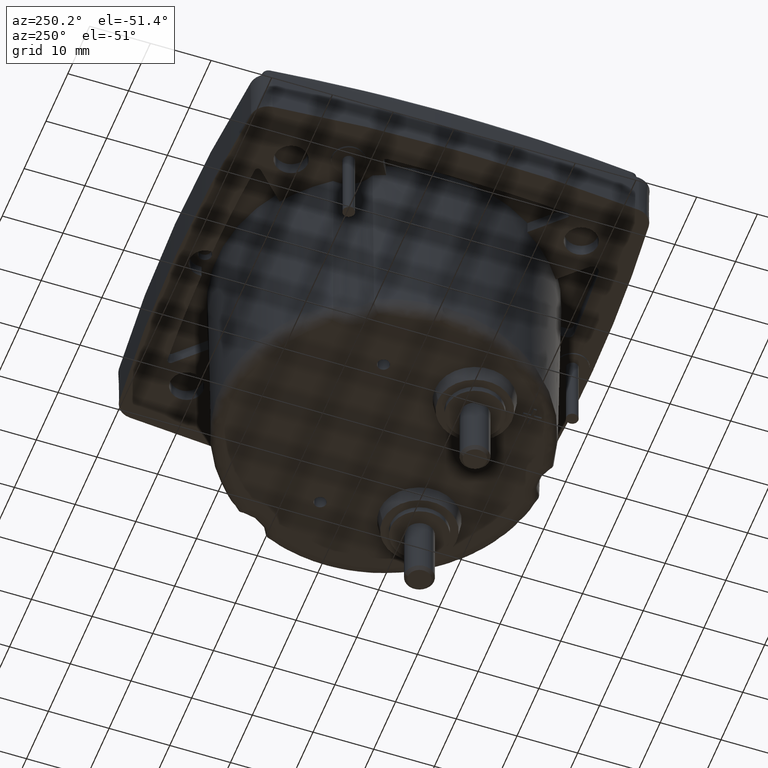
[diagram: clean part render]
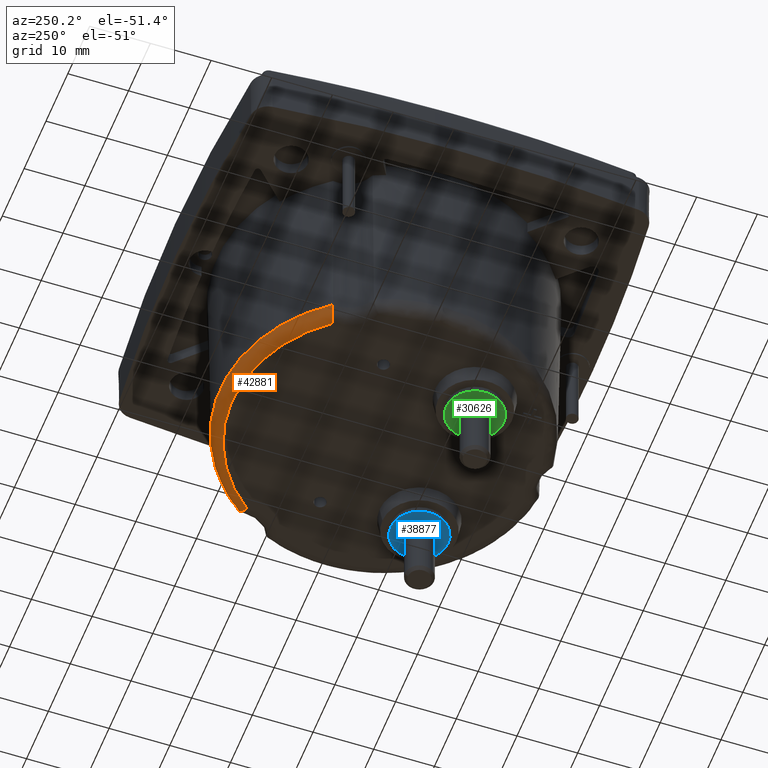
[diagram: same view with three faces highlighted in distinct colors, each labeled with its STEP entity id]
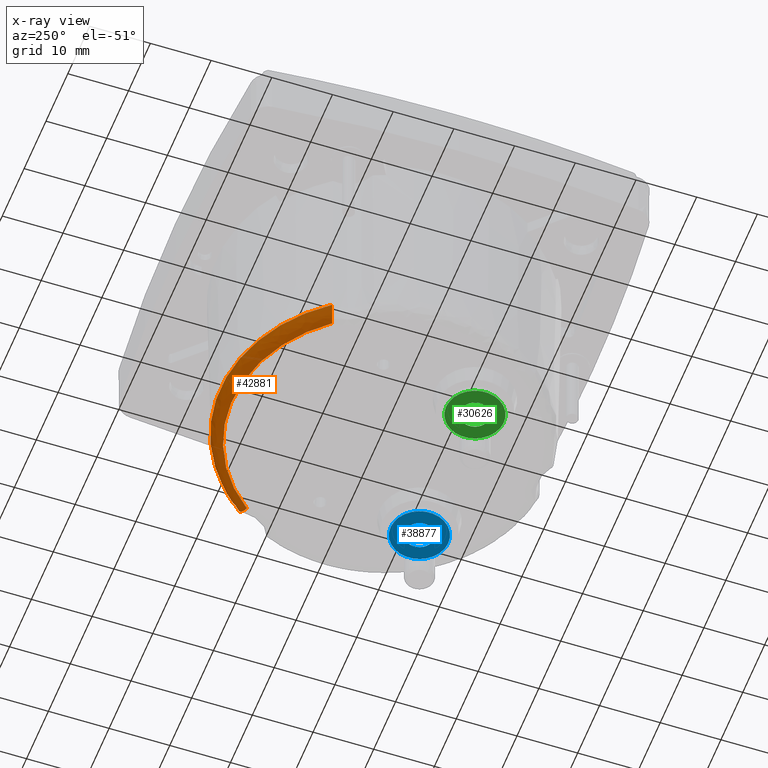
[diagram: x-ray of the same camera — body ghosted, the three highlighted faces saturated]
A machine part, auxiliary view with three faces highlighted in distinct colors.
The next image is the same camera in x-ray (body ghosted, the three faces saturated) — at least one of them is partly hidden behind the body in this view.
Their STEP definitions:

[orange] entity #42881 — the highlighted face is a freeform B-spline surface patch.
#207 = CARTESIAN_POINT ( 'NONE',  ( -0.2818771200629755502, 0.4219179526106892064, -1.243707193137566946 ) ) ;
#453 = CARTESIAN_POINT ( 'NONE',  ( 1.423372483972106028, 0.4223902995415291239, -1.198224992632851427 ) ) ;
#718 = CARTESIAN_POINT ( 'NONE',  ( 1.416240612921496167, 0.4317646131688051003, -1.203344648896369717 ) ) ;
#849 = EDGE_CURVE ( 'NONE', #34106, #45593, #36292, .T. ) ;
#1207 = CARTESIAN_POINT ( 'NONE',  ( 1.367121460910937447, 0.4149083232515158870, -1.269881253000099131 ) ) ;
#1276 = DIRECTION ( 'NONE',  ( -1.000000000000000000, 0.000000000000000000, 2.059416736398898916E-15 ) ) ;
#1457 = CARTESIAN_POINT ( 'NONE',  ( 1.367669604408981554, 0.4151087549048616543, -1.269655160986908893 ) ) ;
#1843 = EDGE_CURVE ( 'NONE', #27427, #45593, #35103, .T. ) ;
#1962 = ORIENTED_EDGE ( 'NONE', *, *, #1843, .F. ) ;
#2405 = CARTESIAN_POINT ( 'NONE',  ( -0.2509788655990668471, 0.4236754884413794220, -1.253840888614718097 ) ) ;
#2500 = EDGE_CURVE ( 'NONE', #27427, #48352, #25049, .T. ) ;
#2645 = CARTESIAN_POINT ( 'NONE',  ( -0.2441809574395172600, 0.4213247413076355308, -1.259682458235668046 ) ) ;
#3684 = CARTESIAN_POINT ( 'NONE',  ( 1.378898863871797387, 0.4191616811492827610, -1.263913326052871877 ) ) ;
#4047 = ORIENTED_EDGE ( 'NONE', *, *, #849, .T. ) ;
#4495 = DIRECTION ( 'NONE',  ( 0.000000000000000000, 0.000000000000000000, 1.000000000000000000 ) ) ;
#4905 = CARTESIAN_POINT ( 'NONE',  ( 1.344951382253074312, 0.4066040269553196640, -1.275590944881890065 ) ) ;
#5489 = CARTESIAN_POINT ( 'NONE',  ( -0.1973751827331425013, 0.4039827671332992254, -1.275590944881889843 ) ) ;
#5635 = CARTESIAN_POINT ( 'NONE',  ( -0.2258103696559538021, 0.4147422789720682235, -1.270064860217525515 ) ) ;
#5812 =( BOUNDED_SURFACE ( )  B_SPLINE_SURFACE ( 3, 3, ( 
 ( #30623, #34335, #41456, #33605 ),
 ( #48582, #26713, #26222, #30866 ),
 ( #207, #45133, #30387, #7585 ),
 ( #11496, #34089, #26470, #453 ) ),
 .UNSPECIFIED., .F., .F., .F. ) 
 B_SPLINE_SURFACE_WITH_KNOTS ( ( 4, 4 ),
 ( 4, 4 ),
 ( 0.000000000000000000, 1.000000000000000000 ),
 ( 0.000000000000000000, 1.000000000000000000 ),
 .UNSPECIFIED. ) 
 GEOMETRIC_REPRESENTATION_ITEM ( )  RATIONAL_B_SPLINE_SURFACE ( (
 ( 1.000000000000000000, 0.7299828246970451184, 0.7299828246970451184, 1.000000000000000000),
 ( 0.8088336327694378713, 0.5904346599590066802, 0.5904346599590066802, 0.8088336327694378713),
 ( 0.8088336327694378713, 0.5904346599590066802, 0.5904346599590066802, 0.8088336327694378713),
 ( 1.000000000000000000, 0.7299828246970451184, 0.7299828246970451184, 1.000000000000000000) ) ) 
 REPRESENTATION_ITEM ( '' )  SURFACE ( )  );
#5868 = CARTESIAN_POINT ( 'NONE',  ( -0.2682727205577566387, 0.4294695939263503681, -1.229646309278641159 ) ) ;
#6338 = CARTESIAN_POINT ( 'NONE',  ( -0.2677500085224651660, 0.4292991887919511140, -1.230756557234432780 ) ) ;
#7367 = CARTESIAN_POINT ( 'NONE',  ( 1.392280292847667189, 0.4238278648574674290, -1.253413101475502556 ) ) ;
#7585 = CARTESIAN_POINT ( 'NONE',  ( 1.422734395207544189, 0.4219179526106873190, -1.243707193137566946 ) ) ;
#7850 = CARTESIAN_POINT ( 'NONE',  ( 1.412055641865591626, 0.4304201488023006728, -1.222397941857974901 ) ) ;
#8099 = CARTESIAN_POINT ( 'NONE',  ( 1.400827966866356356, 0.4267285072681452074, -1.243717059399241931 ) ) ;
#8578 = CARTESIAN_POINT ( 'NONE',  ( 1.376691529732520847, 0.4183748134363206028, -1.265240537513906638 ) ) ;
#9541 = CARTESIAN_POINT ( 'NONE',  ( -0.2248653217075216038, 0.4143965104508827713, -1.270438521303493662 ) ) ;
#9772 = CARTESIAN_POINT ( 'NONE',  ( -0.2359530770994970605, 0.4184235445707361611, -1.265303980125048300 ) ) ;
#10007 = CARTESIAN_POINT ( 'NONE',  ( -0.2221103994684841820, 0.4133864314307227894, -1.271446400269638177 ) ) ;
#11496 = CARTESIAN_POINT ( 'NONE',  ( -0.2825152088275375006, 0.4223902995415311223, -1.198224992632851427 ) ) ;
#11523 = CARTESIAN_POINT ( 'NONE',  ( 1.415642108379818742, 0.4315757497852467650, -1.208498649955545456 ) ) ;
#11762 = CARTESIAN_POINT ( 'NONE',  ( 1.405215260736222715, 0.4281912406103524082, -1.237386482599627691 ) ) ;
#12593 = CARTESIAN_POINT ( 'NONE',  ( 1.338232457877708725, 0.4039827671332992254, -1.275590944881889843 ) ) ;
#13464 = CARTESIAN_POINT ( 'NONE',  ( -0.2242603434485654357, 0.4141750197941541645, -1.270668226140553303 ) ) ;
#13689 = CARTESIAN_POINT ( 'NONE',  ( -0.2497833923958164282, 0.4232647740012542847, -1.254963080954855537 ) ) ;
#13932 = CARTESIAN_POINT ( 'NONE',  ( -0.2170897594046119483, 0.4115299881219380840, -1.273014060125827962 ) ) ;
#15454 = CARTESIAN_POINT ( 'NONE',  ( 1.409877351496966247, 0.4297128446387488143, -1.227975534132923485 ) ) ;
#15694 = CARTESIAN_POINT ( 'NONE',  ( 1.410158741769856006, 0.4298043653460960067, -1.227319208411272511 ) ) ;
#16756 = ORIENTED_EDGE ( 'NONE', *, *, #25248, .T. ) ;
#16864 = CARTESIAN_POINT ( 'NONE',  ( 1.338232457877708725, 0.4039827671332992254, -1.275590944881889843 ) ) ;
#17384 = CARTESIAN_POINT ( 'NONE',  ( -0.2469531910602383584, 0.4222878890843314581, -1.257442806340619557 ) ) ;
#18409 = CARTESIAN_POINT ( 'NONE',  ( 1.416330897178472714, 0.4317934248712527734, -1.198224992726126148 ) ) ;
#19866 = CARTESIAN_POINT ( 'NONE',  ( 1.373201662350814978, 0.4171188842233100602, -1.267101541284030297 ) ) ;
#20111 = CARTESIAN_POINT ( 'NONE',  ( 1.369247213540441654, 0.4156845960428345865, -1.268982027592593154 ) ) ;
#20595 = CARTESIAN_POINT ( 'NONE',  ( -0.2260143283550185567, 0.4148168990104122988, -1.269982900279338356 ) ) ;
#20827 = CARTESIAN_POINT ( 'NONE',  ( -0.2669439046735836429, 0.4290361202221453230, -1.232418349552832471 ) ) ;
#21296 = CARTESIAN_POINT ( 'NONE',  ( -0.2730607396029713918, 0.4310275989935897778, -1.218847871028987173 ) ) ;
#21661 = CARTESIAN_POINT ( 'NONE',  ( 1.416330897178472714, 0.4317934248712527734, -1.198224992726126148 ) ) ;
#22323 = CARTESIAN_POINT ( 'NONE',  ( 1.388850453686562236, 0.4226511535424874455, -1.256716582944229277 ) ) ;
#22434 = ORIENTED_EDGE ( 'NONE', *, *, #2500, .T. ) ;
#22815 = CARTESIAN_POINT ( 'NONE',  ( 1.410662906771615210, 0.4299682342157540860, -1.226097913152801366 ) ) ;
#24494 = CARTESIAN_POINT ( 'NONE',  ( -0.2642368071676947650, 0.4281472156334797385, -1.237343623389768998 ) ) ;
#24732 = CARTESIAN_POINT ( 'NONE',  ( -0.2255326055081122161, 0.4146406568177352092, -1.270176007990692524 ) ) ;
#24968 = CARTESIAN_POINT ( 'NONE',  ( -0.2504050294519032382, 0.4234784201769906109, -1.254383178734222559 ) ) ;
#25049 = B_SPLINE_CURVE_WITH_KNOTS ( 'NONE', 3,
 ( #18409, #718, #11523, #41483, #45407, #7850, #26742, #22815, #15694, #15454, #37801, #11762, #8099, #30655, #44675, #25773, #40748, #33384, #48367, #7367, #22323, #37306, #3684, #8578, #19866, #34837, #20111, #31631, #1457, #38761, #1207, #38283, #41971, #27946, #4905, #42935 ),
 .UNSPECIFIED., .F., .F.,
 ( 4, 2, 2, 1, 2, 2, 2, 2, 1, 1, 2, 2, 2, 2, 1, 1, 1, 2, 2, 2, 4 ),
 ( 0.000000000000000000, 0.1249999999999638067, 0.1874999999999473199, 0.2187499999999385492, 0.2343749999999342470, 0.2499999999999299449, 0.3749999999998959721, 0.4374999999998769873, 0.4687499999998673283, 0.4843749999998605560, 0.4921874999998591682, 0.4999999999998576694, 0.6249999999998292477, 0.6874999999998175904, 0.7187499999998114841, 0.7343749999998099298, 0.7421874999998090416, 0.7460937499998069322, 0.7499999999998048228, 0.8749999999999024114, 1.000000000000000000 ),
 .UNSPECIFIED. ) ;
#25208 = CARTESIAN_POINT ( 'NONE',  ( -0.2259937247883623268, 0.4148093625585725919, -1.269991083619411931 ) ) ;
#25248 = EDGE_CURVE ( 'NONE', #48352, #34106, #32647, .T. ) ;
#25652 = AXIS2_PLACEMENT_3D ( 'NONE', #38346, #4495, #1276 ) ;
#25773 = CARTESIAN_POINT ( 'NONE',  ( 1.395369855053381958, 0.4248841624209386825, -1.250272794808688692 ) ) ;
#26222 = CARTESIAN_POINT ( 'NONE',  ( 0.9477106396768045782, 1.009090802234886342, -1.275590944881889843 ) ) ;
#26470 = CARTESIAN_POINT ( 'NONE',  ( 0.9599098771954260867, 1.048477319206750469, -1.198224992632851427 ) ) ;
#26713 = CARTESIAN_POINT ( 'NONE',  ( 0.1931466354677653652, 1.009090802234887452, -1.275590944881889843 ) ) ;
#26742 = CARTESIAN_POINT ( 'NONE',  ( 1.411395258304828149, 0.4302061150862042105, -1.224258371491743214 ) ) ;
#26895 = CARTESIAN_POINT ( 'NONE',  ( -0.1973751827331425013, 0.4039827671332992254, -1.275590944881889843 ) ) ;
#27162 = CARTESIAN_POINT ( 'NONE',  ( -0.2754736139731059352, 0.4317934355149181669, -1.198224992633031505 ) ) ;
#27427 = VERTEX_POINT ( 'NONE', #21661 ) ;
#27557 = CARTESIAN_POINT ( 'NONE',  ( 0.9120042549235815033, 0.9378602141959943017, -1.275590944881889843 ) ) ;
#27946 = CARTESIAN_POINT ( 'NONE',  ( 1.350749956995242140, 0.4088262160772016540, -1.274703261158943723 ) ) ;
#28177 = CARTESIAN_POINT ( 'NONE',  ( -0.2585071258331927968, 0.4262405222064561405, -1.245828702185666437 ) ) ;
#28420 = CARTESIAN_POINT ( 'NONE',  ( -0.2040933057315007793, 0.4066037143134326737, -1.275590944881889843 ) ) ;
#29133 = CARTESIAN_POINT ( 'NONE',  ( -0.2482948604472112741, 0.4227521420059851542, -1.256307647441140984 ) ) ;
#30136 = FACE_OUTER_BOUND ( 'NONE', #39609, .T. ) ;
#30387 = CARTESIAN_POINT ( 'NONE',  ( 0.9596185056074134634, 1.047536595495218270, -1.243707193137566946 ) ) ;
#30623 = CARTESIAN_POINT ( 'NONE',  ( -0.2192378578833486247, 0.3755490696527559180, -1.275590944881889843 ) ) ;
#30655 = CARTESIAN_POINT ( 'NONE',  ( 1.399245234353775791, 0.4261971477234677841, -1.245782923907572171 ) ) ;
#30866 = CARTESIAN_POINT ( 'NONE',  ( 1.396656782383125295, 0.4026139293064175950, -1.275590944881889843 ) ) ;
#31631 = CARTESIAN_POINT ( 'NONE',  ( 1.368145728682262918, 0.4152827226344432132, -1.269455905896543335 ) ) ;
#32353 = CARTESIAN_POINT ( 'NONE',  ( -0.2628945361693066363, 0.4277033484539549124, -1.239498227927810170 ) ) ;
#32647 =( BOUNDED_CURVE ( )  B_SPLINE_CURVE ( 3, ( #12593, #27557, #39105, #5489 ),
 .UNSPECIFIED., .F., .F. ) 
 B_SPLINE_CURVE_WITH_KNOTS ( ( 4, 4 ),
 ( 0.000000000000000000, 1.000000000000000000 ),
 .UNSPECIFIED. ) 
 CURVE ( )  GEOMETRIC_REPRESENTATION_ITEM ( )  RATIONAL_B_SPLINE_CURVE ( ( 1.000000000000000000, 0.7492765694257823572, 0.7492765694257823572, 1.000000000000000000 ) ) 
 REPRESENTATION_ITEM ( '' )  );
#33384 = CARTESIAN_POINT ( 'NONE',  ( 1.393039164547823505, 0.4240878882641345160, -1.252667391264033148 ) ) ;
#33605 = CARTESIAN_POINT ( 'NONE',  ( 1.360095133027916958, 0.3755490696527540861, -1.275590944881889843 ) ) ;
#34089 = CARTESIAN_POINT ( 'NONE',  ( 0.1809473979491436901, 1.048477319206751357, -1.198224992632851427 ) ) ;
#34106 = VERTEX_POINT ( 'NONE', #26895 ) ;
#34335 = CARTESIAN_POINT ( 'NONE',  ( 0.2098418453267012485, 0.9551885673243808439, -1.275590944881889843 ) ) ;
#34837 = CARTESIAN_POINT ( 'NONE',  ( 1.371412078533929657, 0.4164720591983493980, -1.267999543600423884 ) ) ;
#35103 = CIRCLE ( 'NONE', #25652, 1.061212311381397821 ) ;
#35569 = CARTESIAN_POINT ( 'NONE',  ( -0.2752930404914269436, 0.4317357840870556518, -1.208465501711412760 ) ) ;
#35805 = CARTESIAN_POINT ( 'NONE',  ( -0.2685054809954976474, 0.4295453948223407759, -1.229137994452539129 ) ) ;
#36043 = CARTESIAN_POINT ( 'NONE',  ( -0.2312950667286931827, 0.4167491402942102297, -1.267834586894331705 ) ) ;
#36275 = CARTESIAN_POINT ( 'NONE',  ( -0.2422141246108825974, 0.4206363519170829290, -1.261134808212904357 ) ) ;
#36292 = B_SPLINE_CURVE_WITH_KNOTS ( 'NONE', 3,
 ( #40193, #28420, #47806, #13932, #43399, #10007, #43636, #13464, #9541, #24732, #5635, #25208, #20595, #36043, #9772, #36275, #2645, #17384, #29133, #13689, #24968, #39954, #2405, #43875, #28177, #32353, #24494, #47325, #20827, #6338, #5868, #35805, #21296, #35569, #39719 ),
 .UNSPECIFIED., .F., .F.,
 ( 4, 2, 2, 2, 1, 1, 2, 2, 2, 2, 1, 1, 2, 2, 2, 2, 1, 2, 2, 4 ),
 ( 0.000000000000000000, 0.1249999999999917011, 0.1874999999999883149, 0.2187499999999866496, 0.2343749999999857891, 0.2421874999999855393, 0.2460937499999859279, 0.2499999999999863443, 0.3750000000000137668, 0.4375000000000254796, 0.4687500000000291434, 0.4843750000000315858, 0.4921875000000303646, 0.5000000000000291989, 0.6250000000000249800, 0.6875000000000253131, 0.7187500000000252021, 0.7343750000000252021, 0.7500000000000250910, 1.000000000000000000 ),
 .UNSPECIFIED. ) ;
#37306 = CARTESIAN_POINT ( 'NONE',  ( 1.385159840186914293, 0.4213744255810623618, -1.259744012324419016 ) ) ;
#37801 = CARTESIAN_POINT ( 'NONE',  ( 1.407657600782942664, 0.4289904926170191035, -1.232989964608754541 ) ) ;
#38283 = CARTESIAN_POINT ( 'NONE',  ( 1.364156904710024598, 0.4138235645788945760, -1.271087299829982697 ) ) ;
#38346 = CARTESIAN_POINT ( 'NONE',  ( 0.5704286375722834590, -0.2090036857513889734, -1.198224992633279529 ) ) ;
#38761 = CARTESIAN_POINT ( 'NONE',  ( 1.367351288918223107, 0.4149923916448577388, -1.269787132529664575 ) ) ;
#39105 = CARTESIAN_POINT ( 'NONE',  ( 0.2288530202209840547, 0.9378602141959943017, -1.275590944881889843 ) ) ;
#39609 = EDGE_LOOP ( 'NONE', ( #22434, #16756, #4047, #1962 ) ) ;
#39719 = CARTESIAN_POINT ( 'NONE',  ( -0.2754736139731059352, 0.4317934355149181669, -1.198224992633031505 ) ) ;
#39954 = CARTESIAN_POINT ( 'NONE',  ( -0.2508158470815318730, 0.4236195239827956760, -1.253995837708673067 ) ) ;
#40193 = CARTESIAN_POINT ( 'NONE',  ( -0.1973751827331425013, 0.4039827671332992254, -1.275590944881889843 ) ) ;
#40748 = CARTESIAN_POINT ( 'NONE',  ( 1.393749988380803773, 0.4243311645363702089, -1.251956188025573180 ) ) ;
#41456 = CARTESIAN_POINT ( 'NONE',  ( 0.9310154298178681120, 0.9551885673243800667, -1.275590944881889843 ) ) ;
#41483 = CARTESIAN_POINT ( 'NONE',  ( 1.413967385578132507, 0.4310378967995752708, -1.216128162813568947 ) ) ;
#41971 = CARTESIAN_POINT ( 'NONE',  ( 1.360347631380952604, 0.4124318189919896627, -1.272450573033734100 ) ) ;
#42881 = ADVANCED_FACE ( 'NONE', ( #30136 ), #5812, .T. ) ;
#42935 = CARTESIAN_POINT ( 'NONE',  ( 1.338232457877708725, 0.4039827671332992254, -1.275590944881889843 ) ) ;
#43399 = CARTESIAN_POINT ( 'NONE',  ( -0.2192429281442519751, 0.4123292368077614567, -1.272388148839611377 ) ) ;
#43636 = CARTESIAN_POINT ( 'NONE',  ( -0.2230059409696827921, 0.4137152782575047594, -1.271131781385116399 ) ) ;
#43875 = CARTESIAN_POINT ( 'NONE',  ( -0.2550996122065345428, 0.4250891761998736862, -1.249871988716789062 ) ) ;
#44675 = CARTESIAN_POINT ( 'NONE',  ( 1.396691553076827130, 0.4253329938008901245, -1.248791262065063856 ) ) ;
#45133 = CARTESIAN_POINT ( 'NONE',  ( 0.1812387695371563689, 1.047536595495218936, -1.243707193137566946 ) ) ;
#45407 = CARTESIAN_POINT ( 'NONE',  ( 1.413279922159516921, 0.4308163307005242748, -1.218654294161983787 ) ) ;
#45593 = VERTEX_POINT ( 'NONE', #27162 ) ;
#47325 = CARTESIAN_POINT ( 'NONE',  ( -0.2660713297926522447, 0.4287502634197466467, -1.234067494335093329 ) ) ;
#47806 = CARTESIAN_POINT ( 'NONE',  ( -0.2098914856583874999, 0.4088257645481039870, -1.274703461597404441 ) ) ;
#48352 = VERTEX_POINT ( 'NONE', #16864 ) ;
#48367 = CARTESIAN_POINT ( 'NONE',  ( 1.392561605498020549, 0.4239243113395239071, -1.253139182441028732 ) ) ;
#48582 = CARTESIAN_POINT ( 'NONE',  ( -0.2557995072385566560, 0.4026139293064194824, -1.275590944881889843 ) ) ;

[blue] entity #38877 — the highlighted planar face has unit normal (0, 0, -1).
#2926 = ORIENTED_EDGE ( 'NONE', *, *, #35081, .T. ) ;
#3266 = FACE_BOUND ( 'NONE', #44136, .T. ) ;
#3461 = ORIENTED_EDGE ( 'NONE', *, *, #31183, .F. ) ;
#4884 = AXIS2_PLACEMENT_3D ( 'NONE', #18244, #44270, #33223 ) ;
#5927 = AXIS2_PLACEMENT_3D ( 'NONE', #34048, #48540, #14887 ) ;
#6465 = DIRECTION ( 'NONE',  ( 0.000000000000000000, 0.000000000000000000, -1.000000000000000000 ) ) ;
#7197 = DIRECTION ( 'NONE',  ( 0.000000000000000000, 1.000000000000000000, 0.000000000000000000 ) ) ;
#9013 = VERTEX_POINT ( 'NONE', #40419 ) ;
#9428 = VERTEX_POINT ( 'NONE', #26592 ) ;
#10913 = AXIS2_PLACEMENT_3D ( 'NONE', #44049, #17302, #32283 ) ;
#12033 = ORIENTED_EDGE ( 'NONE', *, *, #42005, .T. ) ;
#13417 = AXIS2_PLACEMENT_3D ( 'NONE', #36401, #6465, #7197 ) ;
#14199 = VERTEX_POINT ( 'NONE', #22978 ) ;
#14887 = DIRECTION ( 'NONE',  ( 0.000000000000000000, 1.000000000000000000, 0.000000000000000000 ) ) ;
#17302 = DIRECTION ( 'NONE',  ( 0.000000000000000000, 0.000000000000000000, 1.000000000000000000 ) ) ;
#18244 = CARTESIAN_POINT ( 'NONE',  ( 1.070428637572283570, -0.6188763223165119065, -1.419291732283464613 ) ) ;
#19172 = VERTEX_POINT ( 'NONE', #41865 ) ;
#21664 = FACE_OUTER_BOUND ( 'NONE', #43756, .T. ) ;
#22978 = CARTESIAN_POINT ( 'NONE',  ( 1.070428637572283570, -0.8058841963322599389, -1.419291732283464613 ) ) ;
#24738 = ORIENTED_EDGE ( 'NONE', *, *, #25868, .F. ) ;
#25832 = PLANE ( 'NONE',  #13417 ) ;
#25868 = EDGE_CURVE ( 'NONE', #14199, #9013, #41553, .T. ) ;
#26592 = CARTESIAN_POINT ( 'NONE',  ( 1.070428637572283570, -0.7133645112928898024, -1.419291732283464613 ) ) ;
#30490 = CIRCLE ( 'NONE', #10913, 0.1870078740157480601 ) ;
#31183 = EDGE_CURVE ( 'NONE', #9013, #14199, #30490, .T. ) ;
#31777 = CIRCLE ( 'NONE', #5927, 0.09448818897637792369 ) ;
#32283 = DIRECTION ( 'NONE',  ( 0.000000000000000000, -1.000000000000000000, 0.000000000000000000 ) ) ;
#33223 = DIRECTION ( 'NONE',  ( 0.000000000000000000, 1.000000000000000000, 0.000000000000000000 ) ) ;
#34048 = CARTESIAN_POINT ( 'NONE',  ( 1.070428637572283570, -0.6188763223165119065, -1.419291732283464613 ) ) ;
#35081 = EDGE_CURVE ( 'NONE', #19172, #9428, #31777, .T. ) ;
#36401 = CARTESIAN_POINT ( 'NONE',  ( 1.070428637572283570, -0.6188763223165119065, -1.419291732283464613 ) ) ;
#38877 = ADVANCED_FACE ( 'NONE', ( #21664, #3266 ), #25832, .T. ) ;
#38992 = DIRECTION ( 'NONE',  ( 0.000000000000000000, -1.000000000000000000, 0.000000000000000000 ) ) ;
#39466 = DIRECTION ( 'NONE',  ( 0.000000000000000000, 0.000000000000000000, 1.000000000000000000 ) ) ;
#40419 = CARTESIAN_POINT ( 'NONE',  ( 1.070428637572283570, -0.4318684483007638186, -1.419291732283464613 ) ) ;
#40782 = AXIS2_PLACEMENT_3D ( 'NONE', #42671, #39466, #38992 ) ;
#41553 = CIRCLE ( 'NONE', #40782, 0.1870078740157480601 ) ;
#41865 = CARTESIAN_POINT ( 'NONE',  ( 1.070428637572283570, -0.5243881333401340106, -1.419291732283464613 ) ) ;
#42005 = EDGE_CURVE ( 'NONE', #9428, #19172, #48010, .T. ) ;
#42671 = CARTESIAN_POINT ( 'NONE',  ( 1.070428637572283570, -0.6188763223165119065, -1.419291732283464613 ) ) ;
#43756 = EDGE_LOOP ( 'NONE', ( #24738, #3461 ) ) ;
#44049 = CARTESIAN_POINT ( 'NONE',  ( 1.070428637572283570, -0.6188763223165119065, -1.419291732283464613 ) ) ;
#44136 = EDGE_LOOP ( 'NONE', ( #2926, #12033 ) ) ;
#44270 = DIRECTION ( 'NONE',  ( -0.000000000000000000, -0.000000000000000000, 1.000000000000000000 ) ) ;
#48010 = CIRCLE ( 'NONE', #4884, 0.09448818897637792369 ) ;
#48540 = DIRECTION ( 'NONE',  ( -0.000000000000000000, -0.000000000000000000, 1.000000000000000000 ) ) ;

[green] entity #30626 — the highlighted planar face has unit normal (0, 0, -1).
#873 = ORIENTED_EDGE ( 'NONE', *, *, #8541, .T. ) ;
#1290 = AXIS2_PLACEMENT_3D ( 'NONE', #25988, #37282, #18639 ) ;
#1585 = ORIENTED_EDGE ( 'NONE', *, *, #21805, .F. ) ;
#4019 = CARTESIAN_POINT ( 'NONE',  ( 0.07042863757228504107, -0.8058841963322599389, -1.419291732283464613 ) ) ;
#5870 = EDGE_CURVE ( 'NONE', #23481, #20562, #42090, .T. ) ;
#7099 = CARTESIAN_POINT ( 'NONE',  ( 0.07042863757228465249, -0.6188763223165119065, -1.419291732283464613 ) ) ;
#7168 = CARTESIAN_POINT ( 'NONE',  ( 0.07042863757228504107, -0.6188763223165119065, -1.419291732283464613 ) ) ;
#8541 = EDGE_CURVE ( 'NONE', #20562, #23481, #29833, .T. ) ;
#8701 = AXIS2_PLACEMENT_3D ( 'NONE', #7099, #37037, #48587 ) ;
#11526 = CIRCLE ( 'NONE', #25601, 0.1870078740157480601 ) ;
#17530 = CARTESIAN_POINT ( 'NONE',  ( 0.07042863757228504107, -0.6188763223165119065, -1.419291732283464613 ) ) ;
#17945 = VERTEX_POINT ( 'NONE', #4019 ) ;
#18450 = DIRECTION ( 'NONE',  ( 0.000000000000000000, 1.000000000000000000, 0.000000000000000000 ) ) ;
#18639 = DIRECTION ( 'NONE',  ( 0.000000000000000000, 1.000000000000000000, 0.000000000000000000 ) ) ;
#20562 = VERTEX_POINT ( 'NONE', #46773 ) ;
#21805 = EDGE_CURVE ( 'NONE', #39063, #17945, #33505, .T. ) ;
#22540 = EDGE_CURVE ( 'NONE', #17945, #39063, #11526, .T. ) ;
#22855 = FACE_BOUND ( 'NONE', #46817, .T. ) ;
#23481 = VERTEX_POINT ( 'NONE', #45308 ) ;
#25259 = DIRECTION ( 'NONE',  ( 0.000000000000000000, 0.000000000000000000, 1.000000000000000000 ) ) ;
#25601 = AXIS2_PLACEMENT_3D ( 'NONE', #36321, #25259, #40243 ) ;
#25681 = AXIS2_PLACEMENT_3D ( 'NONE', #17530, #44047, #32509 ) ;
#25807 = PLANE ( 'NONE',  #35993 ) ;
#25988 = CARTESIAN_POINT ( 'NONE',  ( 0.07042863757228465249, -0.6188763223165119065, -1.419291732283464613 ) ) ;
#28603 = ORIENTED_EDGE ( 'NONE', *, *, #22540, .F. ) ;
#29235 = FACE_OUTER_BOUND ( 'NONE', #34987, .T. ) ;
#29833 = CIRCLE ( 'NONE', #8701, 0.09448818897637792369 ) ;
#30626 = ADVANCED_FACE ( 'NONE', ( #29235, #22855 ), #25807, .T. ) ;
#32509 = DIRECTION ( 'NONE',  ( 0.000000000000000000, -1.000000000000000000, 0.000000000000000000 ) ) ;
#33505 = CIRCLE ( 'NONE', #25681, 0.1870078740157480601 ) ;
#33868 = ORIENTED_EDGE ( 'NONE', *, *, #5870, .T. ) ;
#34987 = EDGE_LOOP ( 'NONE', ( #28603, #1585 ) ) ;
#35993 = AXIS2_PLACEMENT_3D ( 'NONE', #7168, #47913, #18450 ) ;
#36321 = CARTESIAN_POINT ( 'NONE',  ( 0.07042863757228504107, -0.6188763223165119065, -1.419291732283464613 ) ) ;
#37037 = DIRECTION ( 'NONE',  ( -0.000000000000000000, -0.000000000000000000, 1.000000000000000000 ) ) ;
#37282 = DIRECTION ( 'NONE',  ( -0.000000000000000000, -0.000000000000000000, 1.000000000000000000 ) ) ;
#39063 = VERTEX_POINT ( 'NONE', #41546 ) ;
#40243 = DIRECTION ( 'NONE',  ( 0.000000000000000000, -1.000000000000000000, 0.000000000000000000 ) ) ;
#41546 = CARTESIAN_POINT ( 'NONE',  ( 0.07042863757228506882, -0.4318684483007638186, -1.419291732283464613 ) ) ;
#42090 = CIRCLE ( 'NONE', #1290, 0.09448818897637792369 ) ;
#44047 = DIRECTION ( 'NONE',  ( 0.000000000000000000, 0.000000000000000000, 1.000000000000000000 ) ) ;
#45308 = CARTESIAN_POINT ( 'NONE',  ( 0.07042863757228465249, -0.5243881333401340106, -1.419291732283464613 ) ) ;
#46773 = CARTESIAN_POINT ( 'NONE',  ( 0.07042863757228465249, -0.7133645112928898024, -1.419291732283464613 ) ) ;
#46817 = EDGE_LOOP ( 'NONE', ( #33868, #873 ) ) ;
#47913 = DIRECTION ( 'NONE',  ( 0.000000000000000000, 0.000000000000000000, -1.000000000000000000 ) ) ;
#48587 = DIRECTION ( 'NONE',  ( 0.000000000000000000, 1.000000000000000000, 0.000000000000000000 ) ) ;